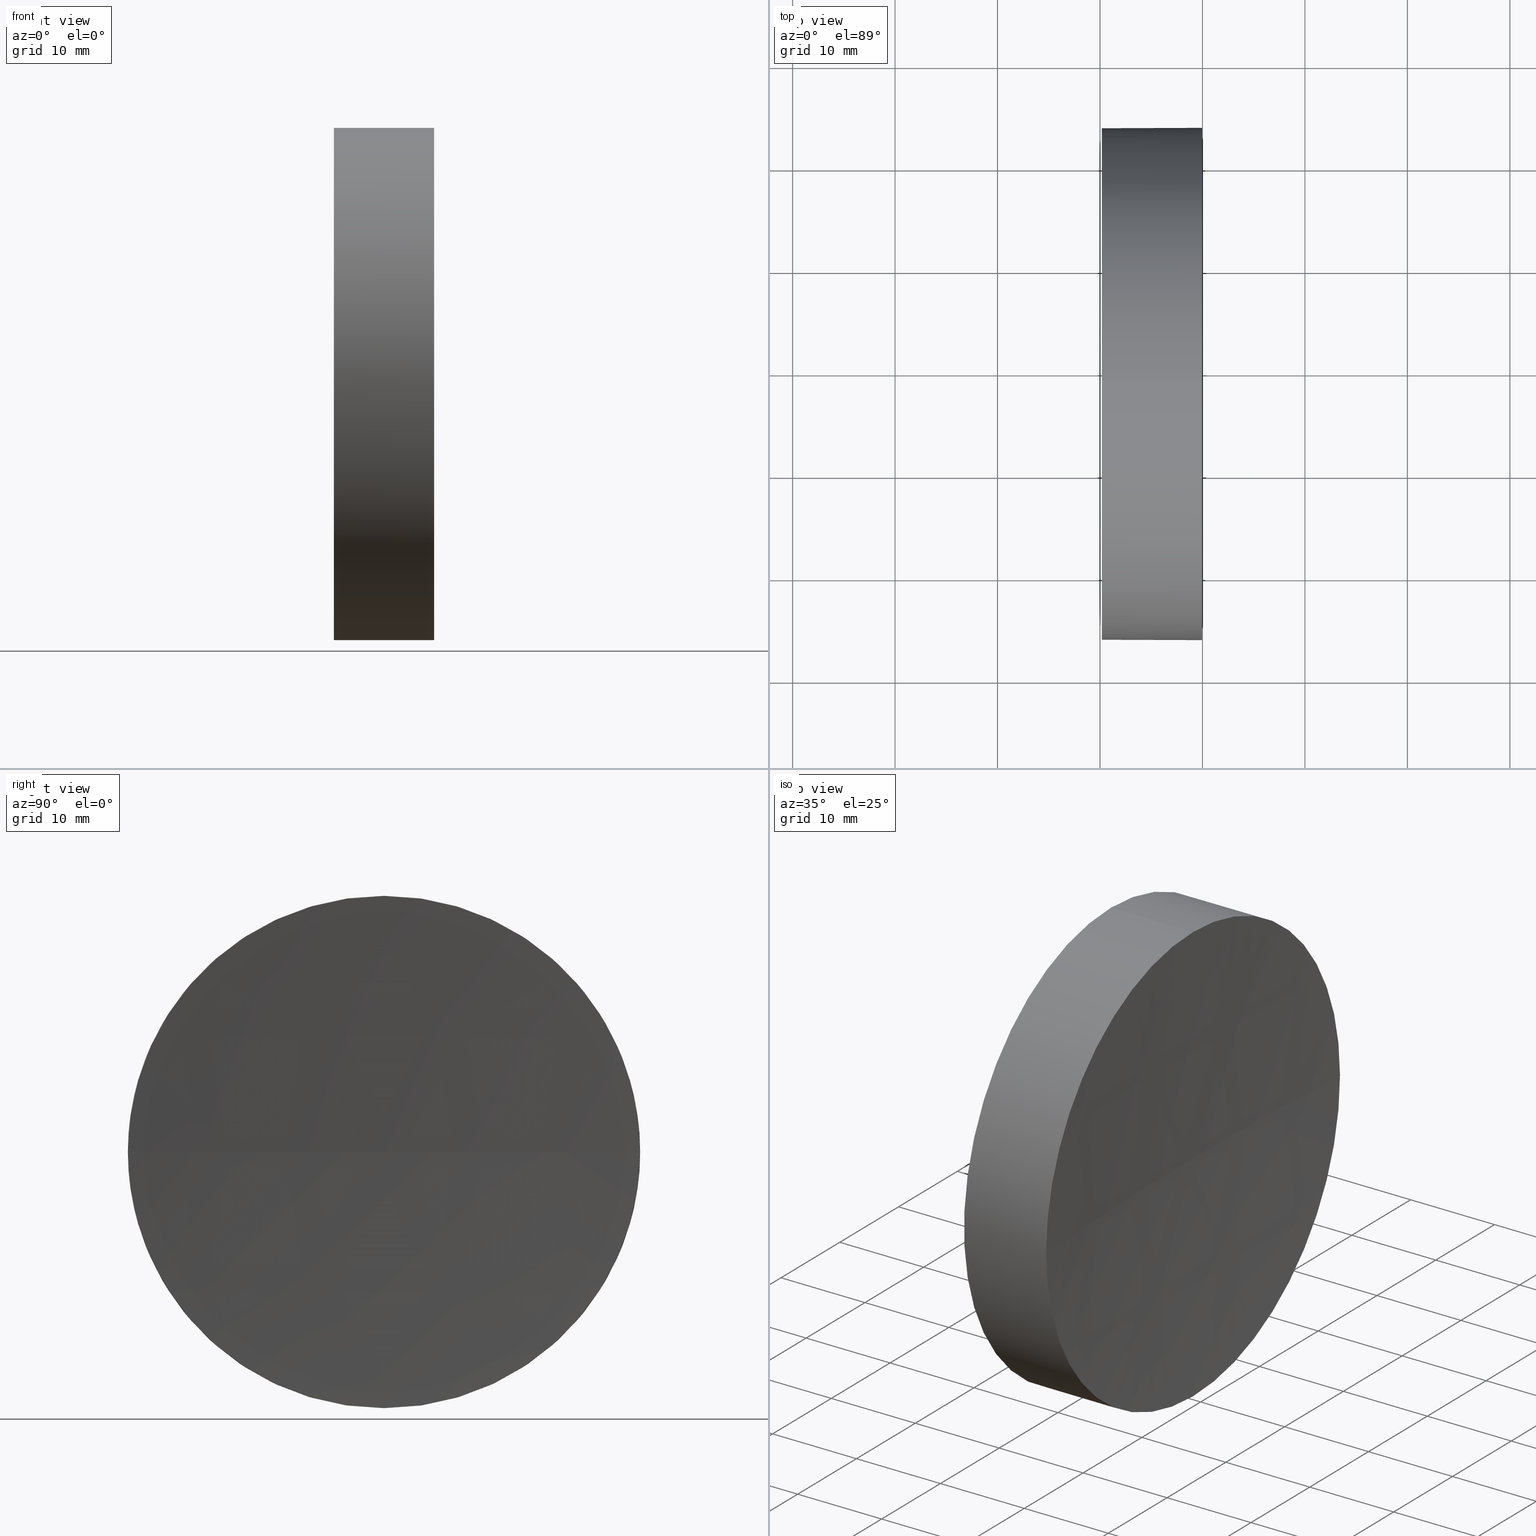
[diagram: canonical four-view strip — front | top / right | iso, engineering-drawing reading convention]
A machine part, canonical four-view strip (front | top / right | iso — engineering-drawing reading convention). The complete STEP part file that produces these views, byte-faithful:
ISO-10303-21;
HEADER;
FILE_DESCRIPTION (( 'STEP AP214' ),
    '1' );
FILE_NAME ('270046.STEP',
    '2019-07-23T05:32:56',
    ( '' ),
    ( '' ),
    'SwSTEP 2.0',
    'SolidWorks 2016',
    '' );
FILE_SCHEMA (( 'AUTOMOTIVE_DESIGN' ));
ENDSEC;

DATA;
#1 = EDGE_CURVE ( 'NONE', #173, #134, #41, .T. ) ;
#2 = EDGE_CURVE ( 'NONE', #173, #88, #19, .T. ) ;
#3 = DIRECTION ( 'NONE',  ( -1.000000000000000000, -0.0000000000000000000, -0.0000000000000000000 ) ) ;
#4 = CARTESIAN_POINT ( 'NONE',  ( 0.0000000000000000000, 0.0000000000000000000, 0.0000000000000000000 ) ) ;
#5 = ORIENTED_EDGE ( 'NONE', *, *, #117, .F. ) ;
#6 =( NAMED_UNIT ( * ) PLANE_ANGLE_UNIT ( ) SI_UNIT ( $, .RADIAN. ) );
#7 = VECTOR ( 'NONE', #31, 1000.000000000000000 ) ;
#8 = UNCERTAINTY_MEASURE_WITH_UNIT (LENGTH_MEASURE( 1.000000000000000100E-005 ), #130, 'distance_accuracy_value', 'NONE');
#9 = AXIS2_PLACEMENT_3D ( 'NONE', #128, #180, #98 ) ;
#10 = ORIENTED_EDGE ( 'NONE', *, *, #77, .T. ) ;
#11 = EDGE_LOOP ( 'NONE', ( #157, #95, #148, #104 ) ) ;
#12 = SURFACE_STYLE_FILL_AREA ( #49 ) ;
#13 = CARTESIAN_POINT ( 'NONE',  ( 217.9702860043302100, 138.7560422467448700, 0.0000000000000000000 ) ) ;
#14 = EDGE_LOOP ( 'NONE', ( #91, #172, #168, #143, #5 ) ) ;
#15 = CARTESIAN_POINT ( 'NONE',  ( 639.1853110669239900, 138.7560422467444700, 0.0000000000000000000 ) ) ;
#16 = FILL_AREA_STYLE_COLOUR ( '', #175 ) ;
#17 = CARTESIAN_POINT ( 'NONE',  ( 239.9673255001412100, 138.7560422467448700, 24.99999999999999300 ) ) ;
#18 = PRODUCT_DEFINITION ( 'δ֪', '', #145, #74 ) ;
#19 = CIRCLE ( 'NONE', #62, 24.99999999999999300 ) ;
#20 = SURFACE_STYLE_USAGE ( .BOTH. , #129 ) ;
#21 = DIRECTION ( 'NONE',  ( 1.000000000000000000, 0.0000000000000000000, 0.0000000000000000000 ) ) ;
#22 = ORIENTED_EDGE ( 'NONE', *, *, #36, .T. ) ;
#23 = VERTEX_POINT ( 'NONE', #27 ) ;
#24 = UNCERTAINTY_MEASURE_WITH_UNIT (LENGTH_MEASURE( 1.000000000000000100E-005 ), #54, 'distance_accuracy_value', 'NONE');
#25 = PRESENTATION_STYLE_ASSIGNMENT (( #85 ) ) ;
#26 = VERTEX_POINT ( 'NONE', #63 ) ;
#27 = CARTESIAN_POINT ( 'NONE',  ( 239.9673255001412100, 163.7560422467451200, 0.0000000000000000000 ) ) ;
#28 = EDGE_CURVE ( 'NONE', #107, #173, #162, .T. ) ;
#29 = DIRECTION ( 'NONE',  ( 0.0000000000000000000, 0.0000000000000000000, 1.000000000000000000 ) ) ;
#30 = ADVANCED_FACE ( 'NONE', ( #68 ), #39, .T. ) ;
#31 = DIRECTION ( 'NONE',  ( -1.000000000000000000, -0.0000000000000000000, -0.0000000000000000000 ) ) ;
#32 = CARTESIAN_POINT ( 'NONE',  ( 239.9673255001412100, 113.7560422467442700, -3.061616997868409900E-015 ) ) ;
#33 = AXIS2_PLACEMENT_3D ( 'NONE', #4, #72, #21 ) ;
#34 = CARTESIAN_POINT ( 'NONE',  ( 239.9673255001412100, 138.7560422467448700, 0.0000000000000000000 ) ) ;
#35 = ADVANCED_FACE ( 'NONE', ( #118 ), #78, .T. ) ;
#36 = EDGE_CURVE ( 'NONE', #107, #120, #55, .T. ) ;
#37 = CARTESIAN_POINT ( 'NONE',  ( 239.1853110669239900, 138.7560422467445000, 0.0000000000000000000 ) ) ;
#38 =( NAMED_UNIT ( * ) PLANE_ANGLE_UNIT ( ) SI_UNIT ( $, .RADIAN. ) );
#39 = CYLINDRICAL_SURFACE ( 'NONE', #122, 24.99999999999999300 ) ;
#40 = APPLICATION_CONTEXT ( 'automotive_design' ) ;
#41 = CIRCLE ( 'NONE', #57, 400.0000000000000600 ) ;
#42 = PRODUCT ( '270046', '270046', '', ( #184 ) ) ;
#43 = STYLED_ITEM ( 'NONE', ( #25 ), #174 ) ;
#44 = EDGE_LOOP ( 'NONE', ( #161, #22, #181, #48, #53 ) ) ;
#45 = CARTESIAN_POINT ( 'NONE',  ( 217.9702860043302100, 138.7560422467448700, 0.0000000000000000000 ) ) ;
#46 = DIRECTION ( 'NONE',  ( -1.000000000000000000, -0.0000000000000000000, -0.0000000000000000000 ) ) ;
#47 = ADVANCED_FACE ( 'NONE', ( #106 ), #96, .F. ) ;
#48 = ORIENTED_EDGE ( 'NONE', *, *, #186, .F. ) ;
#49 = FILL_AREA_STYLE ('',( #112 ) ) ;
#50 = DIRECTION ( 'NONE',  ( 0.0000000000000000000, 0.0000000000000000000, -1.000000000000000000 ) ) ;
#51 = CARTESIAN_POINT ( 'NONE',  ( 639.1853110669239900, 138.7560422467444700, 0.0000000000000000000 ) ) ;
#52 = SURFACE_SIDE_STYLE ('',( #135 ) ) ;
#53 = ORIENTED_EDGE ( 'NONE', *, *, #171, .T. ) ;
#54 =( LENGTH_UNIT ( ) NAMED_UNIT ( * ) SI_UNIT ( .MILLI., .METRE. ) );
#55 = LINE ( 'NONE', #81, #7 ) ;
#56 = APPLICATION_PROTOCOL_DEFINITION ( 'draft international standard', 'automotive_design', 1998, #40 ) ;
#57 = AXIS2_PLACEMENT_3D ( 'NONE', #15, #124, #108 ) ;
#58 = CIRCLE ( 'NONE', #105, 24.99999999999999300 ) ;
#59 = PRODUCT_RELATED_PRODUCT_CATEGORY ( 'part', '', ( #42 ) ) ;
#60 = AXIS2_PLACEMENT_3D ( 'NONE', #153, #67, #97 ) ;
#61 = DIRECTION ( 'NONE',  ( 0.0000000000000000000, 0.0000000000000000000, 1.000000000000000000 ) ) ;
#62 = AXIS2_PLACEMENT_3D ( 'NONE', #164, #65, #29 ) ;
#63 = CARTESIAN_POINT ( 'NONE',  ( 230.1853110698390300, 138.7560422467448700, 24.99999999999999300 ) ) ;
#64 = CARTESIAN_POINT ( 'NONE',  ( 230.1853110698390300, 138.7560422467448700, -24.99999999999999300 ) ) ;
#65 = DIRECTION ( 'NONE',  ( -1.000000000000000000, -0.0000000000000000000, -0.0000000000000000000 ) ) ;
#66 = DIRECTION ( 'NONE',  ( 0.0000000000000000000, 1.000000000000000000, 0.0000000000000000000 ) ) ;
#67 = DIRECTION ( 'NONE',  ( -1.000000000000000000, -0.0000000000000000000, -0.0000000000000000000 ) ) ;
#68 = FACE_OUTER_BOUND ( 'NONE', #14, .T. ) ;
#69 = AXIS2_PLACEMENT_3D ( 'NONE', #142, #50, #109 ) ;
#70 = APPLICATION_CONTEXT ( 'automotive_design' ) ;
#71 = APPLICATION_PROTOCOL_DEFINITION ( 'draft international standard', 'automotive_design', 1998, #70 ) ;
#72 = DIRECTION ( 'NONE',  ( 0.0000000000000000000, 0.0000000000000000000, 1.000000000000000000 ) ) ;
#73 = SPHERICAL_SURFACE ( 'NONE', #132, 400.0000000000000000 ) ;
#74 = PRODUCT_DEFINITION_CONTEXT ( 'detailed design', #40, 'design' ) ;
#75 = STYLED_ITEM ( 'NONE', ( #87 ), #115 ) ;
#76 = ORIENTED_EDGE ( 'NONE', *, *, #2, .F. ) ;
#77 = EDGE_CURVE ( 'NONE', #26, #120, #133, .T. ) ;
#78 = CYLINDRICAL_SURFACE ( 'NONE', #147, 24.99999999999999300 ) ;
#79 = PRESENTATION_LAYER_ASSIGNMENT (  '', '', ( #43 ) ) ;
#80 = CARTESIAN_POINT ( 'NONE',  ( 239.9673255001412100, 138.7560422467448700, 0.0000000000000000000 ) ) ;
#81 = CARTESIAN_POINT ( 'NONE',  ( 217.9702860043302100, 138.7560422467448700, -24.99999999999999300 ) ) ;
#82 = DIRECTION ( 'NONE',  ( 0.0000000000000000000, 0.0000000000000000000, 1.000000000000000000 ) ) ;
#83 = PRESENTATION_LAYER_ASSIGNMENT (  '', '', ( #75 ) ) ;
#84 = SPHERICAL_SURFACE ( 'NONE', #69, 400.0000000000000000 ) ;
#85 = SURFACE_STYLE_USAGE ( .BOTH. , #52 ) ;
#86 =( NAMED_UNIT ( * ) SI_UNIT ( $, .STERADIAN. ) SOLID_ANGLE_UNIT ( ) );
#87 = PRESENTATION_STYLE_ASSIGNMENT (( #20 ) ) ;
#88 = VERTEX_POINT ( 'NONE', #17 ) ;
#89 = MECHANICAL_DESIGN_GEOMETRIC_PRESENTATION_REPRESENTATION (  '', ( #43 ), #99 ) ;
#90 = ORIENTED_EDGE ( 'NONE', *, *, #171, .F. ) ;
#91 = ORIENTED_EDGE ( 'NONE', *, *, #36, .F. ) ;
#92 = MECHANICAL_DESIGN_GEOMETRIC_PRESENTATION_REPRESENTATION (  '', ( #75 ), #137 ) ;
#93 = ORIENTED_EDGE ( 'NONE', *, *, #1, .T. ) ;
#94 = AXIS2_PLACEMENT_3D ( 'NONE', #80, #3, #123 ) ;
#95 = ORIENTED_EDGE ( 'NONE', *, *, #28, .F. ) ;
#96 = PLANE ( 'NONE',  #9 ) ;
#97 = DIRECTION ( 'NONE',  ( 0.0000000000000000000, 0.0000000000000000000, 1.000000000000000000 ) ) ;
#98 = DIRECTION ( 'NONE',  ( 0.0000000000000000000, 0.0000000000000000000, -1.000000000000000000 ) ) ;
#99 =( GEOMETRIC_REPRESENTATION_CONTEXT ( 3 ) GLOBAL_UNCERTAINTY_ASSIGNED_CONTEXT ( ( #103 ) ) GLOBAL_UNIT_ASSIGNED_CONTEXT ( ( #101, #169, #102 ) ) REPRESENTATION_CONTEXT ( 'NONE', 'WORKASPACE' ) );
#100 = FACE_OUTER_BOUND ( 'NONE', #11, .T. ) ;
#101 =( LENGTH_UNIT ( ) NAMED_UNIT ( * ) SI_UNIT ( .MILLI., .METRE. ) );
#102 =( NAMED_UNIT ( * ) SI_UNIT ( $, .STERADIAN. ) SOLID_ANGLE_UNIT ( ) );
#103 = UNCERTAINTY_MEASURE_WITH_UNIT (LENGTH_MEASURE( 1.000000000000000100E-005 ), #101, 'distance_accuracy_value', 'NONE');
#104 = ORIENTED_EDGE ( 'NONE', *, *, #176, .T. ) ;
#105 = AXIS2_PLACEMENT_3D ( 'NONE', #151, #179, #126 ) ;
#106 = FACE_OUTER_BOUND ( 'NONE', #125, .T. ) ;
#107 = VERTEX_POINT ( 'NONE', #155 ) ;
#108 = DIRECTION ( 'NONE',  ( 0.0000000000000000000, 1.000000000000000000, 1.224646799147353000E-016 ) ) ;
#109 = DIRECTION ( 'NONE',  ( 0.0000000000000000000, 1.000000000000000000, 0.0000000000000000000 ) ) ;
#110 = AXIS2_PLACEMENT_3D ( 'NONE', #34, #182, #82 ) ;
#111 = ADVANCED_FACE ( 'NONE', ( #131 ), #84, .F. ) ;
#112 = FILL_AREA_STYLE_COLOUR ( '', #165 ) ;
#113 = SHAPE_DEFINITION_REPRESENTATION ( #160, #174 ) ;
#114 = DIRECTION ( 'NONE',  ( 1.000000000000000000, 0.0000000000000000000, 0.0000000000000000000 ) ) ;
#115 = MANIFOLD_SOLID_BREP ( '��ת1', #138 ) ;
#116 =( NAMED_UNIT ( * ) SI_UNIT ( $, .STERADIAN. ) SOLID_ANGLE_UNIT ( ) );
#117 = EDGE_CURVE ( 'NONE', #120, #26, #58, .T. ) ;
#118 = FACE_OUTER_BOUND ( 'NONE', #44, .T. ) ;
#119 = AXIS2_PLACEMENT_3D ( 'NONE', #156, #166, #127 ) ;
#120 = VERTEX_POINT ( 'NONE', #64 ) ;
#121 = EDGE_CURVE ( 'NONE', #23, #107, #136, .T. ) ;
#122 = AXIS2_PLACEMENT_3D ( 'NONE', #45, #177, #150 ) ;
#123 = DIRECTION ( 'NONE',  ( 0.0000000000000000000, 0.0000000000000000000, 1.000000000000000000 ) ) ;
#124 = DIRECTION ( 'NONE',  ( 0.0000000000000000000, 1.224646799147353200E-016, -1.000000000000000000 ) ) ;
#125 = EDGE_LOOP ( 'NONE', ( #10, #170 ) ) ;
#126 = DIRECTION ( 'NONE',  ( 0.0000000000000000000, 0.0000000000000000000, 1.000000000000000000 ) ) ;
#127 = DIRECTION ( 'NONE',  ( 0.0000000000000000000, 0.0000000000000000000, 1.000000000000000000 ) ) ;
#128 = CARTESIAN_POINT ( 'NONE',  ( 230.1853110698390300, 138.7560422467448700, 0.0000000000000000000 ) ) ;
#129 = SURFACE_SIDE_STYLE ('',( #12 ) ) ;
#130 =( LENGTH_UNIT ( ) NAMED_UNIT ( * ) SI_UNIT ( .MILLI., .METRE. ) );
#131 = FACE_OUTER_BOUND ( 'NONE', #159, .T. ) ;
#132 = AXIS2_PLACEMENT_3D ( 'NONE', #167, #183, #66 ) ;
#133 = CIRCLE ( 'NONE', #60, 24.99999999999999300 ) ;
#134 = VERTEX_POINT ( 'NONE', #37 ) ;
#135 = SURFACE_STYLE_FILL_AREA ( #144 ) ;
#136 = CIRCLE ( 'NONE', #110, 24.99999999999999300 ) ;
#137 =( GEOMETRIC_REPRESENTATION_CONTEXT ( 3 ) GLOBAL_UNCERTAINTY_ASSIGNED_CONTEXT ( ( #8 ) ) GLOBAL_UNIT_ASSIGNED_CONTEXT ( ( #130, #38, #86 ) ) REPRESENTATION_CONTEXT ( 'NONE', 'WORKASPACE' ) );
#138 = CLOSED_SHELL ( 'NONE', ( #35, #111, #163, #30, #47 ) ) ;
#139 = VECTOR ( 'NONE', #178, 1000.000000000000000 ) ;
#140 = CARTESIAN_POINT ( 'NONE',  ( 217.9702860043302100, 138.7560422467448700, 24.99999999999999300 ) ) ;
#141 = AXIS2_PLACEMENT_3D ( 'NONE', #51, #154, #114 ) ;
#142 = CARTESIAN_POINT ( 'NONE',  ( 639.1853110669239900, 138.7560422467444700, 0.0000000000000000000 ) ) ;
#143 = ORIENTED_EDGE ( 'NONE', *, *, #186, .T. ) ;
#144 = FILL_AREA_STYLE ('',( #16 ) ) ;
#145 = PRODUCT_DEFINITION_FORMATION_WITH_SPECIFIED_SOURCE ( '�κ�', '', #42, .NOT_KNOWN. ) ;
#146 = LINE ( 'NONE', #140, #139 ) ;
#147 = AXIS2_PLACEMENT_3D ( 'NONE', #13, #46, #61 ) ;
#148 = ORIENTED_EDGE ( 'NONE', *, *, #121, .F. ) ;
#149 = CIRCLE ( 'NONE', #119, 24.99999999999999300 ) ;
#150 = DIRECTION ( 'NONE',  ( 0.0000000000000000000, 0.0000000000000000000, 1.000000000000000000 ) ) ;
#151 = CARTESIAN_POINT ( 'NONE',  ( 230.1853110698390300, 138.7560422467448700, 0.0000000000000000000 ) ) ;
#152 = ORIENTED_EDGE ( 'NONE', *, *, #176, .F. ) ;
#153 = CARTESIAN_POINT ( 'NONE',  ( 230.1853110698390300, 138.7560422467448700, 0.0000000000000000000 ) ) ;
#154 = DIRECTION ( 'NONE',  ( 0.0000000000000000000, 0.0000000000000000000, 1.000000000000000000 ) ) ;
#155 = CARTESIAN_POINT ( 'NONE',  ( 239.9673255001412100, 138.7560422467448700, -24.99999999999999300 ) ) ;
#156 = CARTESIAN_POINT ( 'NONE',  ( 239.9673255001412100, 138.7560422467448700, 0.0000000000000000000 ) ) ;
#157 = ORIENTED_EDGE ( 'NONE', *, *, #1, .F. ) ;
#158 =( GEOMETRIC_REPRESENTATION_CONTEXT ( 3 ) GLOBAL_UNCERTAINTY_ASSIGNED_CONTEXT ( ( #24 ) ) GLOBAL_UNIT_ASSIGNED_CONTEXT ( ( #54, #6, #116 ) ) REPRESENTATION_CONTEXT ( 'NONE', 'WORKASPACE' ) );
#159 = EDGE_LOOP ( 'NONE', ( #76, #93, #152, #90 ) ) ;
#160 = PRODUCT_DEFINITION_SHAPE ( 'NONE', 'NONE',  #18 ) ;
#161 = ORIENTED_EDGE ( 'NONE', *, *, #121, .T. ) ;
#162 = CIRCLE ( 'NONE', #94, 24.99999999999999300 ) ;
#163 = ADVANCED_FACE ( 'NONE', ( #100 ), #73, .F. ) ;
#164 = CARTESIAN_POINT ( 'NONE',  ( 239.9673255001412100, 138.7560422467448700, 0.0000000000000000000 ) ) ;
#165 = COLOUR_RGB ( '',1.000000000000000000, 1.000000000000000000, 1.000000000000000000 ) ;
#166 = DIRECTION ( 'NONE',  ( -1.000000000000000000, -0.0000000000000000000, -0.0000000000000000000 ) ) ;
#167 = CARTESIAN_POINT ( 'NONE',  ( 639.1853110669239900, 138.7560422467444700, 0.0000000000000000000 ) ) ;
#168 = ORIENTED_EDGE ( 'NONE', *, *, #2, .T. ) ;
#169 =( NAMED_UNIT ( * ) PLANE_ANGLE_UNIT ( ) SI_UNIT ( $, .RADIAN. ) );
#170 = ORIENTED_EDGE ( 'NONE', *, *, #117, .T. ) ;
#171 = EDGE_CURVE ( 'NONE', #88, #23, #149, .T. ) ;
#172 = ORIENTED_EDGE ( 'NONE', *, *, #28, .T. ) ;
#173 = VERTEX_POINT ( 'NONE', #32 ) ;
#174 = ADVANCED_BREP_SHAPE_REPRESENTATION ( '270046', ( #115, #33 ), #158 ) ;
#175 = COLOUR_RGB ( '',1.000000000000000000, 1.000000000000000000, 1.000000000000000000 ) ;
#176 = EDGE_CURVE ( 'NONE', #23, #134, #185, .T. ) ;
#177 = DIRECTION ( 'NONE',  ( -1.000000000000000000, -0.0000000000000000000, -0.0000000000000000000 ) ) ;
#178 = DIRECTION ( 'NONE',  ( -1.000000000000000000, -0.0000000000000000000, -0.0000000000000000000 ) ) ;
#179 = DIRECTION ( 'NONE',  ( -1.000000000000000000, -0.0000000000000000000, -0.0000000000000000000 ) ) ;
#180 = DIRECTION ( 'NONE',  ( 1.000000000000000000, 0.0000000000000000000, 0.0000000000000000000 ) ) ;
#181 = ORIENTED_EDGE ( 'NONE', *, *, #77, .F. ) ;
#182 = DIRECTION ( 'NONE',  ( -1.000000000000000000, -0.0000000000000000000, -0.0000000000000000000 ) ) ;
#183 = DIRECTION ( 'NONE',  ( 0.0000000000000000000, 0.0000000000000000000, -1.000000000000000000 ) ) ;
#184 = PRODUCT_CONTEXT ( 'NONE', #70, 'mechanical' ) ;
#185 = CIRCLE ( 'NONE', #141, 400.0000000000000000 ) ;
#186 = EDGE_CURVE ( 'NONE', #88, #26, #146, .T. ) ;
ENDSEC;
END-ISO-10303-21;
